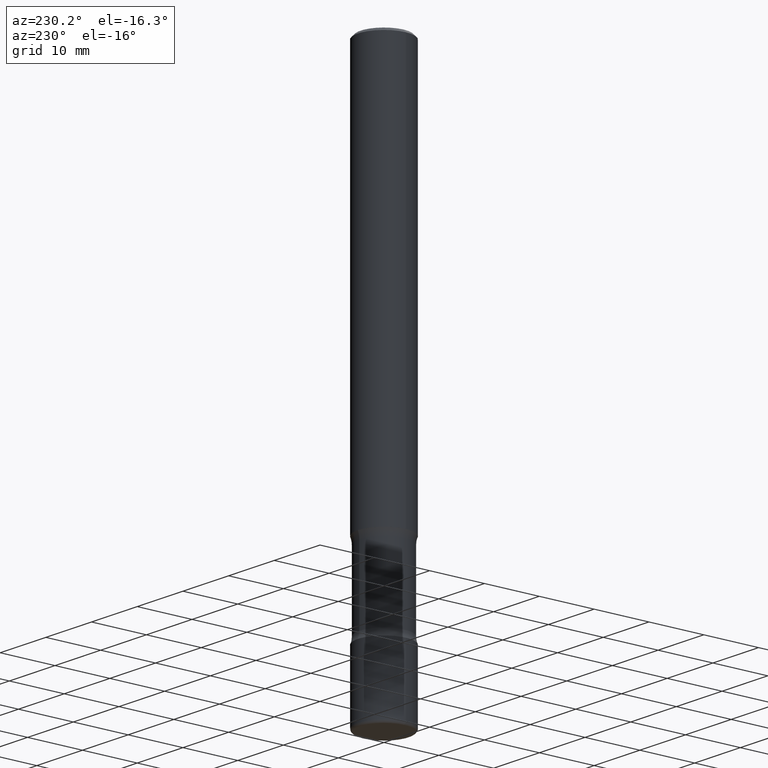
[diagram: clean part render]
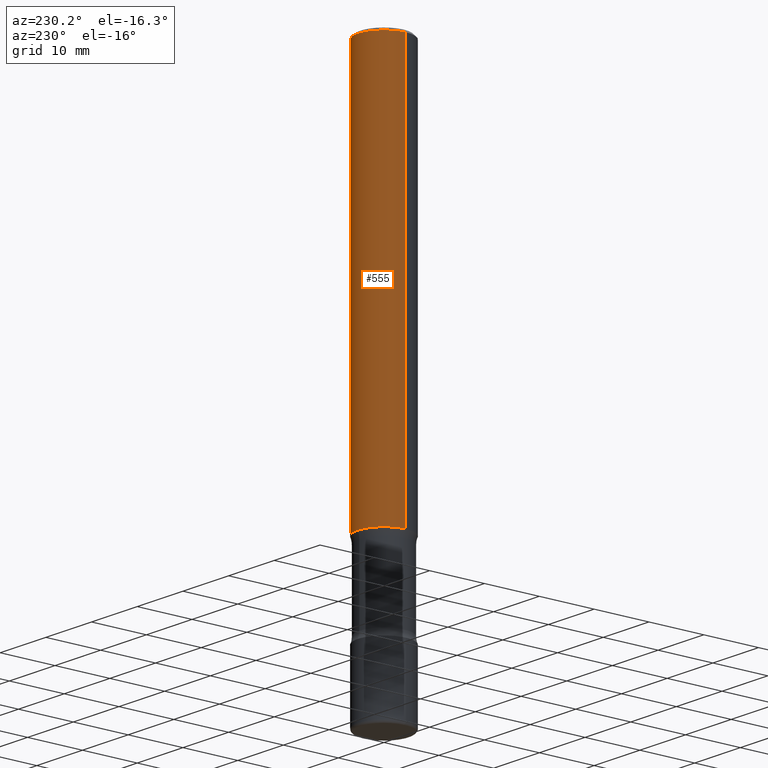
[diagram: same view with one face highlighted and labeled with its STEP entity id]
A machine part, auxiliary view. The second image highlights one B-rep face of the part: STEP entity #555.
In plain terms, the highlighted cylindrical surface (edge-blend (fillet) strip) has radius 4.7625 mm, axis along (-0, 0, 1).
Its self-contained STEP definition (entity closure, byte-faithful):
#18 = AXIS2_PLACEMENT_3D ( 'NONE', #234, #284, #155 ) ;
#29 = DIRECTION ( 'NONE',  ( 1.000000000000000000, -6.982962677686266711E-15, 4.876176775795935793E-29 ) ) ;
#36 = CARTESIAN_POINT ( 'NONE',  ( -0.1875000000000002498, 1.332267629550189623E-15, -9.223003294227960602E-30 ) ) ;
#53 = VERTEX_POINT ( 'NONE', #318 ) ;
#64 = FACE_OUTER_BOUND ( 'NONE', #546, .T. ) ;
#70 = AXIS2_PLACEMENT_3D ( 'NONE', #544, #228, #29 ) ;
#81 = CARTESIAN_POINT ( 'NONE',  ( 0.1875000000000003886, -1.134731435124022127E-14, -2.875000000000000000 ) ) ;
#108 = VECTOR ( 'NONE', #112, 39.37007874015748143 ) ;
#112 = DIRECTION ( 'NONE',  ( -2.445468806185136877E-29, 3.491481338843145188E-15, 1.000000000000000000 ) ) ;
#124 = AXIS2_PLACEMENT_3D ( 'NONE', #370, #497, #276 ) ;
#130 = EDGE_CURVE ( 'NONE', #431, #53, #425, .T. ) ;
#139 = CYLINDRICAL_SURFACE ( 'NONE', #70, 0.1875000000000002498 ) ;
#140 = VERTEX_POINT ( 'NONE', #186 ) ;
#152 = LINE ( 'NONE', #36, #449 ) ;
#155 = DIRECTION ( 'NONE',  ( 1.000000000000000000, -6.982962677686266711E-15, 0.000000000000000000 ) ) ;
#175 = EDGE_CURVE ( 'NONE', #431, #140, #334, .T. ) ;
#186 = CARTESIAN_POINT ( 'NONE',  ( 0.1875000000000001110, -1.356173001359025861E-15, -0.02000000000000000042 ) ) ;
#187 = EDGE_CURVE ( 'NONE', #140, #351, #377, .T. ) ;
#195 = DIRECTION ( 'NONE',  ( -2.445468806185136877E-29, 3.491481338843145188E-15, 1.000000000000000000 ) ) ;
#228 = DIRECTION ( 'NONE',  ( -2.445468806185136597E-29, 3.491481338843145583E-15, 1.000000000000000000 ) ) ;
#234 = CARTESIAN_POINT ( 'NONE',  ( 4.890937612370273159E-31, -6.982962677686291609E-17, -0.02000000000000000042 ) ) ;
#276 = DIRECTION ( 'NONE',  ( 1.000000000000000000, -6.982962677686269077E-15, 0.000000000000000000 ) ) ;
#279 = ORIENTED_EDGE ( 'NONE', *, *, #130, .T. ) ;
#284 = DIRECTION ( 'NONE',  ( -2.445468806185136597E-29, 3.491481338843145583E-15, 1.000000000000000000 ) ) ;
#299 = EDGE_CURVE ( 'NONE', #53, #351, #152, .T. ) ;
#318 = CARTESIAN_POINT ( 'NONE',  ( -0.1875000000000003886, -3.721651608425259832E-15, -2.875000000000000000 ) ) ;
#334 = LINE ( 'NONE', #467, #108 ) ;
#351 = VERTEX_POINT ( 'NONE', #399 ) ;
#370 = CARTESIAN_POINT ( 'NONE',  ( 7.030722817782267716E-29, -1.003800884917404311E-14, -2.875000000000000000 ) ) ;
#377 = CIRCLE ( 'NONE', #18, 0.1875000000000001110 ) ;
#393 = ORIENTED_EDGE ( 'NONE', *, *, #299, .T. ) ;
#396 = ORIENTED_EDGE ( 'NONE', *, *, #175, .F. ) ;
#399 = CARTESIAN_POINT ( 'NONE',  ( -0.1875000000000001110, 1.239475875289312893E-15, -0.02000000000000000042 ) ) ;
#422 = ORIENTED_EDGE ( 'NONE', *, *, #187, .F. ) ;
#425 = CIRCLE ( 'NONE', #124, 0.1875000000000003886 ) ;
#431 = VERTEX_POINT ( 'NONE', #81 ) ;
#449 = VECTOR ( 'NONE', #195, 39.37007874015748143 ) ;
#467 = CARTESIAN_POINT ( 'NONE',  ( 0.1875000000000002498, -1.309305502066176783E-15, 9.142831454617392223E-30 ) ) ;
#497 = DIRECTION ( 'NONE',  ( -2.445468806185136597E-29, 3.491481338843145583E-15, 1.000000000000000000 ) ) ;
#544 = CARTESIAN_POINT ( 'NONE',  ( 0.000000000000000000, 0.000000000000000000, 0.000000000000000000 ) ) ;
#546 = EDGE_LOOP ( 'NONE', ( #279, #393, #422, #396 ) ) ;
#555 = ADVANCED_FACE ( 'NONE', ( #64 ), #139, .T. ) ;